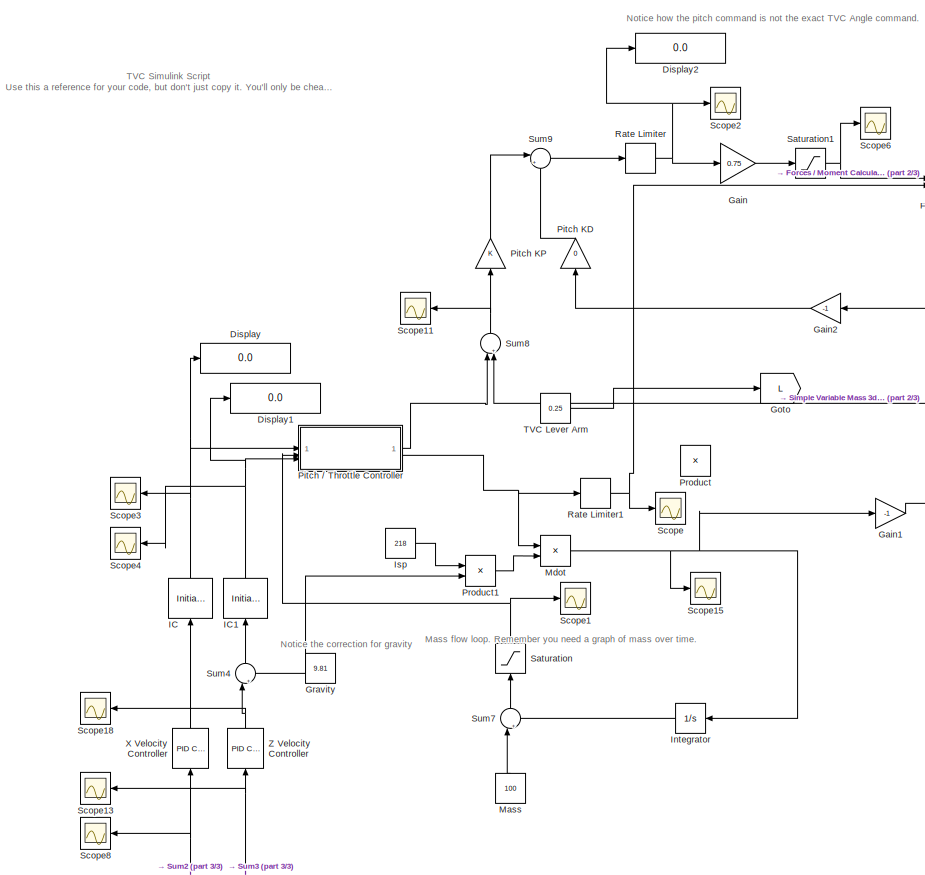
[diagram: root canvas - part 1/3, middle left region]
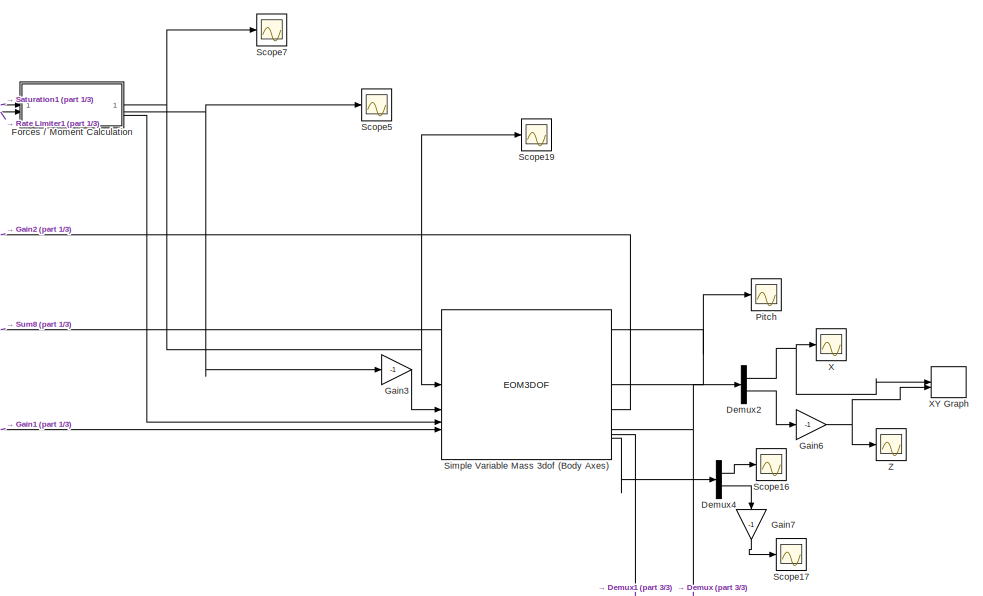
[diagram: root canvas - part 2/3, top right region]
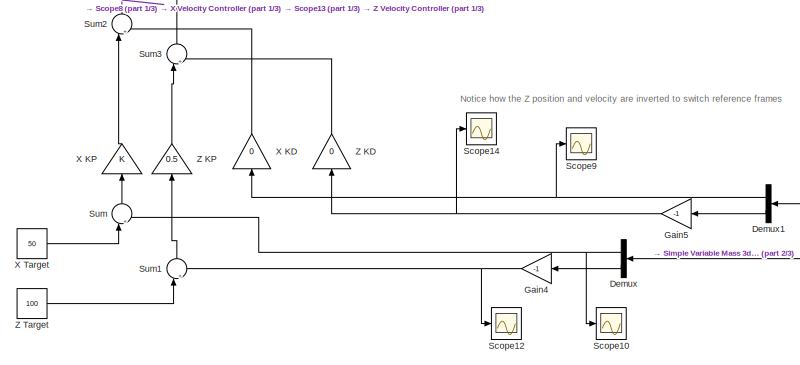
[diagram: root canvas - part 3/3, bottom left region]
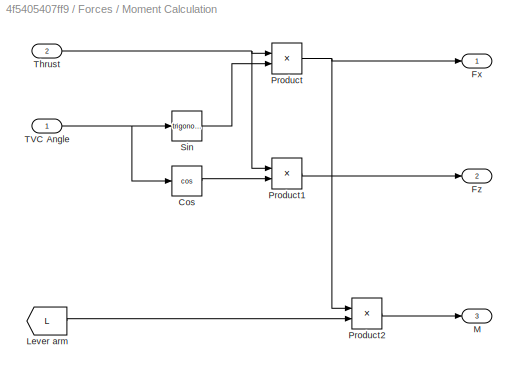
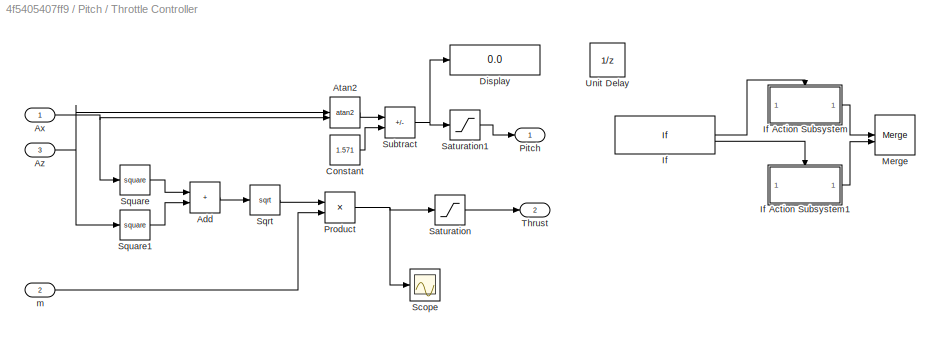
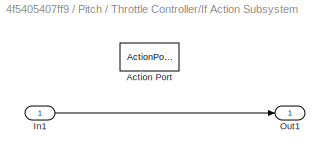
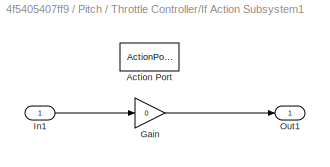
MODEL slx_4f5405407ff9
KIND model
CONFIG AbsTol = auto
CONFIG EnableMultiTasking = off
CONFIG FixedStep = auto
CONFIG MaxStep = auto
CONFIG MinStep = auto
CONFIG RelTol = 1e-3
CONFIG SampleTimeConstraint = Unconstrained
CONFIG SolverName = VariableStepAuto
CONFIG StartTime = 0.0
CONFIG StopTime = 5
BLOCK [Demux] Demux
  NameLocation = top
  Outputs = 2
BLOCK [Demux] Demux1
  NameLocation = top
  Outputs = 2
BLOCK [Demux] Demux2
  Outputs = 2
BLOCK [Demux] Demux4
  Outputs = 2
BLOCK [Display] Display
  Decimation = 1
BLOCK [Display] Display1
  Decimation = 1
BLOCK [Display] Display2
  Decimation = 1
BLOCK [SubSystem] Forces // Moment Calculation
BLOCK [Trigonometry] Forces // Moment Calculation/Cos
  Operator = cos
BLOCK [Outport] Forces // Moment Calculation/Fx
BLOCK [Outport] Forces // Moment Calculation/Fz
  Port = 2
BLOCK [From] Forces // Moment Calculation/Lever arm
  GotoTag = L
  TagVisibility = global
BLOCK [Outport] Forces // Moment Calculation/M
  Port = 3
BLOCK [Product] Forces // Moment Calculation/Product
BLOCK [Product] Forces // Moment Calculation/Product1
BLOCK [Product] Forces // Moment Calculation/Product2
BLOCK [Trigonometry] Forces // Moment Calculation/Sin
BLOCK [Inport] Forces // Moment Calculation/TVC Angle
BLOCK [Inport] Forces // Moment Calculation/Thrust
  Port = 2
BLOCK [Gain] Gain
  Gain = 0.75
BLOCK [Gain] Gain1
  Gain = -1
BLOCK [Gain] Gain2
  Gain = -1
  NameLocation = top
BLOCK [Gain] Gain3
  Gain = -1
BLOCK [Gain] Gain4
  Gain = -1
BLOCK [Gain] Gain5
  Gain = -1
BLOCK [Gain] Gain6
  Gain = -1
BLOCK [Gain] Gain7
  Gain = -1
  NameLocation = left
BLOCK [Goto] Goto
  GotoTag = L
  TagVisibility = global
BLOCK [Constant] Gravity
  NameLocation = top
  SampleTime = -1
  Value = 9.81
BLOCK [InitialCondition] IC
  NameLocation = right
BLOCK [InitialCondition] IC1
  NameLocation = right
BLOCK [Integrator] Integrator
  NameLocation = top
BLOCK [Constant] Isp
  SampleTime = -1
  Value = 218
BLOCK [Constant] Mass
  NameLocation = right
  SampleTime = -1
  Value = 100
BLOCK [Product] Mdot
  Inputs = */
BLOCK [Scope] Pitch
  ActiveDisplayYMaximum = 0.0911743434930714
  ActiveDisplayYMinimum = -0.82056909143764267
  DataLoggingVariableName = ScopeData5
  Floating = off
  GraphicalSettings = {"Style":{"BackgroundColor":[0.12941176470588237,0.12941176470588237,0.12941176470588237],"AxesColor":[0.07058823529411765,0.07058823529411765,0.07058823529411765],"LabelsColor":[0.8509803921568627,0.8509803921568627,0.8509803921568627],"PreserveColors":false,"Visible":[true],"LineStyle":["-"],"LineWidth":[1.5],"BarWidth":[0.9],"LineColor":["auto"],"LineFaceAlpha":[1],"LineEdgeAlpha":[1],"Marker":...<+2061ch>
  MultipleDisplayCache = [{"MaxYLimMag":0.82056909143764267,"MaxYLimReal":0.0911743434930714,"MinYLimMag":0,"MinYLimReal":-0.82056909143764267,"PlotAsMagnitudePhase":false,"ShowGrid":true,"ShowLegend":false,"Title":"%<SignalLabel>","YLabel":""}]
  NumInputPorts = 1
  ScopeFrameLocation = window
  WasSavedAsWebScope = on
  WindowPosition = [573.000000,323.000000,560.000000,420.000000,]
BLOCK [SubSystem] Pitch // Throttle Controller
BLOCK [Sum] Pitch // Throttle Controller/Add
  IconShape = rectangular
BLOCK [Trigonometry] Pitch // Throttle Controller/Atan2
  Operator = atan2
BLOCK [Inport] Pitch // Throttle Controller/Ax
BLOCK [Inport] Pitch // Throttle Controller/Az
  Port = 3
BLOCK [Constant] Pitch // Throttle Controller/Constant
  Value = 1.571
BLOCK [Display] Pitch // Throttle Controller/Display
  Decimation = 1
BLOCK [If] Pitch // Throttle Controller/If
  Commented = on
  IfExpression = u1 > 100
BLOCK [SubSystem] Pitch // Throttle Controller/If Action Subsystem
  Commented = on
  TreatAsAtomicUnit = on
BLOCK [ActionPort] Pitch // Throttle Controller/If Action Subsystem/Action Port
  ActionPortLabel = if(u1 > 100)
BLOCK [Inport] Pitch // Throttle Controller/If Action Subsystem/In1
BLOCK [Outport] Pitch // Throttle Controller/If Action Subsystem/Out1
BLOCK [SubSystem] Pitch // Throttle Controller/If Action Subsystem1
  Commented = on
  TreatAsAtomicUnit = on
BLOCK [ActionPort] Pitch // Throttle Controller/If Action Subsystem1/Action Port
  ActionPortLabel = else
BLOCK [Gain] Pitch // Throttle Controller/If Action Subsystem1/Gain
  Gain = 0
BLOCK [Inport] Pitch // Throttle Controller/If Action Subsystem1/In1
BLOCK [Outport] Pitch // Throttle Controller/If Action Subsystem1/Out1
BLOCK [Merge] Pitch // Throttle Controller/Merge
  Commented = on
BLOCK [Outport] Pitch // Throttle Controller/Pitch
BLOCK [Product] Pitch // Throttle Controller/Product
BLOCK [Saturate] Pitch // Throttle Controller/Saturation
  LowerLimit = 890
  UpperLimit = 2400
BLOCK [Saturate] Pitch // Throttle Controller/Saturation1
  LowerLimit = -3.14
  UpperLimit = 3.14
BLOCK [Scope] Pitch // Throttle Controller/Scope
  ActiveDisplayYMaximum = 10016.396600886135
  ActiveDisplayYMinimum = 3816.6696850978651
  DataLoggingVariableName = ScopeData11
  Floating = off
  GraphicalSettings = {"AxesScalingProperties":{"AlignXAxis":"Center","AlignYAxis":"Center","AutoScaleXAxisLimits":false,"AxesScaling":"Manual","AxesScalingNumUpdates":10,"ExpandOnly":true,"ScaleAxesLimitsAtStop":false,"XAxisDataRange":100,"YAxisDataRange":80},"DisplayProperties":{"ColorOrder":["auto","auto","auto","auto","auto","auto","auto","auto","auto","auto","auto","auto","auto","auto","auto","auto","auto","auto",...<+1910ch>
  MultipleDisplayCache = [{"MaxYLimMag":51951.3230124451,"MaxYLimReal":10016.396600886135,"MinYLimMag":0,"MinYLimReal":3816.6696850978651,"PlotAsMagnitudePhase":false,"ShowGrid":true,"ShowLegend":false,"Title":"%<SignalLabel>","YLabel":""}]
  NumInputPorts = 1
  ScopeFrameLocation = window
  WasSavedAsWebScope = on
  WindowPosition = [573.000000,323.000000,560.000000,420.000000,]
BLOCK [Sqrt] Pitch // Throttle Controller/Sqrt
BLOCK [Math] Pitch // Throttle Controller/Square
  Operator = square
BLOCK [Math] Pitch // Throttle Controller/Square1
  Operator = square
BLOCK [Sum] Pitch // Throttle Controller/Subtract
  IconShape = rectangular
  Inputs = +-
BLOCK [Outport] Pitch // Throttle Controller/Thrust
  Port = 2
BLOCK [UnitDelay] Pitch // Throttle Controller/Unit Delay
  Commented = on
  HasFrameUpgradeWarning = on
  SampleTime = -1
BLOCK [Inport] Pitch // Throttle Controller/m
  Port = 2
BLOCK [Gain] Pitch KD
  Gain = 0
  NameLocation = right
BLOCK [Gain] Pitch KP
  NameLocation = right
BLOCK [Product] Product
  Commented = on
BLOCK [Product] Product1
BLOCK [RateLimiter] Rate Limiter
  FallingSlewLimit = -inf
  RisingSlewLimit = 10
  SampleTimeMode = inherited
BLOCK [RateLimiter] Rate Limiter1
  FallingSlewLimit = -50
  RisingSlewLimit = 50
  SampleTimeMode = inherited
BLOCK [Saturate] Saturation
  LowerLimit = 50
  NameLocation = right
  UpperLimit = 200
BLOCK [Saturate] Saturation1
BLOCK [Scope] Scope
  ActiveDisplayYMaximum = 2422.8434633727511
  ActiveDisplayYMinimum = 2194.4088296452419
  DataLoggingVariableName = ScopeData2
  Floating = off
  GraphicalSettings = {"Style":{"BackgroundColor":[0.12941176470588237,0.12941176470588237,0.12941176470588237],"AxesColor":[0.07058823529411765,0.07058823529411765,0.07058823529411765],"LabelsColor":[0.8509803921568627,0.8509803921568627,0.8509803921568627],"PreserveColors":false,"Visible":[true],"LineStyle":["-"],"LineWidth":[1.5],"BarWidth":[0.9],"LineColor":["auto"],"LineFaceAlpha":[1],"LineEdgeAlpha":[1],"Marker":...<+2035ch>
  MultipleDisplayCache = [{"MaxYLimMag":2422.8434633727511,"MaxYLimReal":2422.8434633727511,"MinYLimMag":2194.4088296452419,"MinYLimReal":2194.4088296452419,"PlotAsMagnitudePhase":false,"ShowGrid":true,"ShowLegend":false,"Title":"%<SignalLabel>","YLabel":""}]
  NumInputPorts = 1
  ScopeFrameLocation = window
  WasSavedAsWebScope = on
  WindowPosition = [573.000000,323.000000,560.000000,420.000000,]
BLOCK [Scope] Scope1
  ActiveDisplayYMaximum = 101.23453809256529
  ActiveDisplayYMinimum = 88.889157166912454
  DataLoggingVariableName = ScopeData3
  Floating = off
  GraphicalSettings = {"Style":{"BackgroundColor":[0.12941176470588237,0.12941176470588237,0.12941176470588237],"AxesColor":[0.07058823529411765,0.07058823529411765,0.07058823529411765],"LabelsColor":[0.8509803921568627,0.8509803921568627,0.8509803921568627],"PreserveColors":false,"Visible":[true],"LineStyle":["-"],"LineWidth":[1.5],"BarWidth":[0.9],"LineColor":["auto"],"LineFaceAlpha":[1],"LineEdgeAlpha":[1],"Marker":...<+2033ch>
  MultipleDisplayCache = [{"MaxYLimMag":101.23453809256529,"MaxYLimReal":101.23453809256529,"MinYLimMag":88.889157166912454,"MinYLimReal":88.889157166912454,"PlotAsMagnitudePhase":false,"ShowGrid":true,"ShowLegend":false,"Title":"%<SignalLabel>","YLabel":""}]
  NumInputPorts = 1
  ScopeFrameLocation = window
  WasSavedAsWebScope = on
  WindowPosition = [573.000000,323.000000,560.000000,420.000000,]
BLOCK [Scope] Scope10
  ActiveDisplayYMaximum = 7.5279463716010717
  ActiveDisplayYMinimum = -20.815065172496663
  DataLoggingVariableName = ScopeData14
  Floating = off
  GraphicalSettings = {"Style":{"BackgroundColor":[0.12941176470588237,0.12941176470588237,0.12941176470588237],"AxesColor":[0.07058823529411765,0.07058823529411765,0.07058823529411765],"LabelsColor":[0.8509803921568627,0.8509803921568627,0.8509803921568627],"PreserveColors":false,"Visible":[true],"LineStyle":["-"],"LineWidth":[1.5],"BarWidth":[0.9],"LineColor":["auto"],"LineFaceAlpha":[1],"LineEdgeAlpha":[1],"Marker":...<+1995ch>  <repeated x3 — deduplicated; at blocks: Scope10, X, Z>
  MultipleDisplayCache = [{"MaxYLimMag":266.82681448737128,"MaxYLimReal":7.5279463716010717,"MinYLimMag":0,"MinYLimReal":-20.815065172496663,"PlotAsMagnitudePhase":false,"ShowGrid":true,"ShowLegend":false,"Title":"%<SignalLabel>","YLabel":""}]
  NumInputPorts = 1
  ScopeFrameLocation = window
  WasSavedAsWebScope = on
  WindowPosition = [573.000000,323.000000,560.000000,420.000000,]
BLOCK [Scope] Scope11
  ActiveDisplayYMaximum = 1.6240869125779045
  ActiveDisplayYMinimum = -0.954432771582435
  DataLoggingVariableName = ScopeData15
  Floating = off
  GraphicalSettings = {"Style":{"BackgroundColor":[0.12941176470588237,0.12941176470588237,0.12941176470588237],"AxesColor":[0.07058823529411765,0.07058823529411765,0.07058823529411765],"LabelsColor":[0.8509803921568627,0.8509803921568627,0.8509803921568627],"PreserveColors":false,"Visible":[true],"LineStyle":["-"],"LineWidth":[1.5],"BarWidth":[0.9],"LineColor":["auto"],"LineFaceAlpha":[1],"LineEdgeAlpha":[1],"Marker":...<+2013ch>
  MultipleDisplayCache = [{"MaxYLimMag":1.6240869125779045,"MaxYLimReal":1.6240869125779045,"MinYLimMag":0,"MinYLimReal":-0.954432771582435,"PlotAsMagnitudePhase":false,"ShowGrid":true,"ShowLegend":false,"Title":"%<SignalLabel>","YLabel":""}]
  NameLocation = top
  NumInputPorts = 1
  ScopeFrameLocation = window
  WasSavedAsWebScope = on
  WindowPosition = [552.000000,319.000000,560.000000,420.000000,]
BLOCK [Scope] Scope12
  ActiveDisplayYMaximum = 89.535378805693725
  ActiveDisplayYMinimum = -805.81840925124368
  DataLoggingVariableName = ScopeData16
  Floating = off
  GraphicalSettings = {"Style":{"BackgroundColor":[0.12941176470588237,0.12941176470588237,0.12941176470588237],"AxesColor":[0.07058823529411765,0.07058823529411765,0.07058823529411765],"LabelsColor":[0.8509803921568627,0.8509803921568627,0.8509803921568627],"PreserveColors":false,"Visible":[true],"LineStyle":["-"],"LineWidth":[1.5],"BarWidth":[0.9],"LineColor":["auto"],"LineFaceAlpha":[1],"LineEdgeAlpha":[1],"Marker":...<+1993ch>
  MultipleDisplayCache = [{"MaxYLimMag":805.81840925124368,"MaxYLimReal":89.535378805693725,"MinYLimMag":0,"MinYLimReal":-805.81840925124368,"PlotAsMagnitudePhase":false,"ShowGrid":true,"ShowLegend":false,"Title":"%<SignalLabel>","YLabel":""}]
  NumInputPorts = 1
  ScopeFrameLocation = window
  WasSavedAsWebScope = on
  WindowPosition = [573.000000,323.000000,560.000000,420.000000,]
BLOCK [Scope] Scope13
  ActiveDisplayYMaximum = 58.397110596446396
  ActiveDisplayYMinimum = -25.57399536801757
  DataLoggingVariableName = ScopeData17
  Floating = off
  GraphicalSettings = {"Style":{"BackgroundColor":[0.12941176470588237,0.12941176470588237,0.12941176470588237],"AxesColor":[0.07058823529411765,0.07058823529411765,0.07058823529411765],"LabelsColor":[0.8509803921568627,0.8509803921568627,0.8509803921568627],"PreserveColors":false,"Visible":[true],"LineStyle":["-"],"LineWidth":[1.5],"BarWidth":[0.9],"LineColor":["auto"],"LineFaceAlpha":[1],"LineEdgeAlpha":[1],"Marker":...<+1991ch>
  MultipleDisplayCache = [{"MaxYLimMag":58.397110596446396,"MaxYLimReal":58.397110596446396,"MinYLimMag":0,"MinYLimReal":-25.57399536801757,"PlotAsMagnitudePhase":false,"ShowGrid":true,"ShowLegend":false,"Title":"%<SignalLabel>","YLabel":""}]
  NameLocation = top
  NumInputPorts = 1
  ScopeFrameLocation = window
  WasSavedAsWebScope = on
  WindowPosition = [864.000000,323.000000,560.000000,420.000000,]
BLOCK [Scope] Scope14
  ActiveDisplayYMaximum = 210.23271517076014
  ActiveDisplayYMinimum = -23.359190574528903
  DataLoggingVariableName = ScopeData18
  Floating = off
  GraphicalSettings = {"Style":{"BackgroundColor":[0.12941176470588237,0.12941176470588237,0.12941176470588237],"AxesColor":[0.07058823529411765,0.07058823529411765,0.07058823529411765],"LabelsColor":[0.8509803921568627,0.8509803921568627,0.8509803921568627],"PreserveColors":false,"Visible":[true],"LineStyle":["-"],"LineWidth":[1.5],"BarWidth":[0.9],"LineColor":["auto"],"LineFaceAlpha":[1],"LineEdgeAlpha":[1],"Marker":...<+2001ch>
  MultipleDisplayCache = [{"MaxYLimMag":210.23271517076014,"MaxYLimReal":210.23271517076014,"MinYLimMag":0,"MinYLimReal":-23.359190574528903,"PlotAsMagnitudePhase":false,"ShowGrid":true,"ShowLegend":false,"Title":"%<SignalLabel>","YLabel":""}]
  NumInputPorts = 1
  ScopeFrameLocation = window
  WasSavedAsWebScope = on
  WindowPosition = [573.000000,323.000000,560.000000,420.000000,]
BLOCK [Scope] Scope15
  ActiveDisplayYMaximum = 1
  ActiveDisplayYMinimum = -1
  DataLoggingVariableName = ScopeData19
  Floating = off
  GraphicalSettings = {"Style":{"BackgroundColor":[0.12941176470588237,0.12941176470588237,0.12941176470588237],"AxesColor":[0.07058823529411765,0.07058823529411765,0.07058823529411765],"LabelsColor":[0.8509803921568627,0.8509803921568627,0.8509803921568627],"PreserveColors":false,"Visible":[true],"LineStyle":["-"],"LineWidth":[1.5],"BarWidth":[0.9],"LineColor":["auto"],"LineFaceAlpha":[1],"LineEdgeAlpha":[1],"Marker":...<+1890ch>
  MultipleDisplayCache = [{"MaxYLimMag":1,"MaxYLimReal":1,"MinYLimMag":0,"MinYLimReal":-1,"PlotAsMagnitudePhase":false,"ShowGrid":true,"ShowLegend":false,"Title":"%<SignalLabel>","YLabel":""}]
  NumInputPorts = 1
  ScopeFrameLocation = window
  WasSavedAsWebScope = on
  WindowPosition = [573.000000,323.000000,560.000000,420.000000,]
BLOCK [Scope] Scope16
  DataLoggingVariableName = ScopeData20
  Floating = off
  GraphicalSettings = {"GraphicalSettings":{"LegacySettings":true,"Style":{"Style":{"PlotType":"Auto"}}}}
  NumInputPorts = 1
  WasSavedAsWebScope = on
BLOCK [Scope] Scope17
  DataLoggingVariableName = ScopeData21
  Floating = off
  GraphicalSettings = {"GraphicalSettings":{"LegacySettings":true,"Style":{"Style":{"PlotType":"Auto"}}}}
  NumInputPorts = 1
  WasSavedAsWebScope = on
BLOCK [Scope] Scope18
  ActiveDisplayYMaximum = 56.25
  ActiveDisplayYMinimum = -6.2499999999999982
  DataLoggingVariableName = ScopeData22
  Floating = off
  GraphicalSettings = {"Style":{"BackgroundColor":[0.12941176470588237,0.12941176470588237,0.12941176470588237],"AxesColor":[0.07058823529411765,0.07058823529411765,0.07058823529411765],"LabelsColor":[0.8509803921568627,0.8509803921568627,0.8509803921568627],"PreserveColors":false,"Visible":[true],"LineStyle":["-"],"LineWidth":[1.5],"BarWidth":[0.9],"LineColor":["auto"],"LineFaceAlpha":[1],"LineEdgeAlpha":[1],"Marker":...<+2055ch>
  MultipleDisplayCache = [{"MaxYLimMag":56.25,"MaxYLimReal":56.25,"MinYLimMag":0,"MinYLimReal":-6.2499999999999982,"PlotAsMagnitudePhase":false,"ShowGrid":true,"ShowLegend":false,"Title":"%<SignalLabel>","YLabel":""}]
  NameLocation = top
  NumInputPorts = 1
  ScopeFrameLocation = window
  WasSavedAsWebScope = on
  WindowPosition = [864.000000,323.000000,560.000000,420.000000,]
BLOCK [Scope] Scope19
  ActiveDisplayYMaximum = 1
  ActiveDisplayYMinimum = -1
  DataLoggingVariableName = ScopeData23
  Floating = off
  GraphicalSettings = {"Style":{"BackgroundColor":[0.12941176470588237,0.12941176470588237,0.12941176470588237],"AxesColor":[0.07058823529411765,0.07058823529411765,0.07058823529411765],"LabelsColor":[0.8509803921568627,0.8509803921568627,0.8509803921568627],"PreserveColors":false,"Visible":[true],"LineStyle":["-"],"LineWidth":[1.5],"BarWidth":[0.9],"LineColor":["auto"],"LineFaceAlpha":[1],"LineEdgeAlpha":[1],"Marker":...<+1890ch>
  MultipleDisplayCache = [{"MaxYLimMag":1,"MaxYLimReal":1,"MinYLimMag":0,"MinYLimReal":-1,"PlotAsMagnitudePhase":false,"ShowGrid":true,"ShowLegend":false,"Title":"%<SignalLabel>","YLabel":""}]
  NumInputPorts = 1
  ScopeFrameLocation = window
  WasSavedAsWebScope = on
  WindowPosition = [573.000000,323.000000,560.000000,419.000000,]
BLOCK [Scope] Scope2
  ActiveDisplayYMaximum = 2.4582465684153676
  ActiveDisplayYMinimum = -1.2384537813656917
  DataLoggingVariableName = ScopeData4
  Floating = off
  GraphicalSettings = {"Style":{"BackgroundColor":[0.12941176470588237,0.12941176470588237,0.12941176470588237],"AxesColor":[0.07058823529411765,0.07058823529411765,0.07058823529411765],"LabelsColor":[0.8509803921568627,0.8509803921568627,0.8509803921568627],"PreserveColors":false,"Visible":[true],"LineStyle":["-"],"LineWidth":[1.5],"BarWidth":[0.9],"LineColor":["auto"],"LineFaceAlpha":[1],"LineEdgeAlpha":[1],"Marker":...<+2009ch>
  MultipleDisplayCache = [{"MaxYLimMag":2.4582465684153676,"MaxYLimReal":2.4582465684153676,"MinYLimMag":0,"MinYLimReal":-1.2384537813656917,"PlotAsMagnitudePhase":false,"ShowGrid":true,"ShowLegend":false,"Title":"%<SignalLabel>","YLabel":""}]
  NumInputPorts = 1
  ScopeFrameLocation = window
  WasSavedAsWebScope = on
  WindowPosition = [573.000000,323.000000,560.000000,420.000000,]
BLOCK [Scope] Scope3
  ActiveDisplayYMaximum = 14.853806601140857
  ActiveDisplayYMinimum = -12.780889310603875
  DataLoggingVariableName = ScopeData6
  Floating = off
  GraphicalSettings = {"Style":{"BackgroundColor":[0.12941176470588237,0.12941176470588237,0.12941176470588237],"AxesColor":[0.07058823529411765,0.07058823529411765,0.07058823529411765],"LabelsColor":[0.8509803921568627,0.8509803921568627,0.8509803921568627],"PreserveColors":false,"Visible":[true],"LineStyle":["-"],"LineWidth":[1.5],"BarWidth":[0.9],"LineColor":["auto"],"LineFaceAlpha":[1],"LineEdgeAlpha":[1],"Marker":...<+2005ch>
  MultipleDisplayCache = [{"MaxYLimMag":14.853806601140857,"MaxYLimReal":14.853806601140857,"MinYLimMag":0,"MinYLimReal":-12.780889310603875,"PlotAsMagnitudePhase":false,"ShowGrid":true,"ShowLegend":false,"Title":"%<SignalLabel>","YLabel":""}]
  NameLocation = top
  NumInputPorts = 1
  ScopeFrameLocation = window
  WasSavedAsWebScope = on
  WindowPosition = [573.000000,323.000000,560.000000,420.000000,]
BLOCK [Scope] Scope4
  ActiveDisplayYMaximum = 9.9143404242177677
  ActiveDisplayYMinimum = 7.4428510639758034
  DataLoggingVariableName = ScopeData7
  Floating = off
  GraphicalSettings = {"Style":{"BackgroundColor":[0.12941176470588237,0.12941176470588237,0.12941176470588237],"AxesColor":[0.07058823529411765,0.07058823529411765,0.07058823529411765],"LabelsColor":[0.8509803921568627,0.8509803921568627,0.8509803921568627],"PreserveColors":false,"Visible":[true],"LineStyle":["-"],"LineWidth":[1.5],"BarWidth":[0.9],"LineColor":["auto"],"LineFaceAlpha":[1],"LineEdgeAlpha":[1],"Marker":...<+1937ch>
  MultipleDisplayCache = [{"MaxYLimMag":9.9143404242177677,"MaxYLimReal":9.9143404242177677,"MinYLimMag":7.4428510639758034,"MinYLimReal":7.4428510639758034,"PlotAsMagnitudePhase":false,"ShowGrid":true,"ShowLegend":false,"Title":"%<SignalLabel>","YLabel":""}]
  NameLocation = top
  NumInputPorts = 1
  ScopeFrameLocation = window
  WasSavedAsWebScope = on
  WindowPosition = [573.000000,323.000000,560.000000,420.000000,]
BLOCK [Scope] Scope5
  ActiveDisplayYMaximum = 1029.5314461063213
  ActiveDisplayYMinimum = 226.8801933940461
  DataLoggingVariableName = ScopeData8
  Floating = off
  GraphicalSettings = {"Style":{"BackgroundColor":[0.12941176470588237,0.12941176470588237,0.12941176470588237],"AxesColor":[0.07058823529411765,0.07058823529411765,0.07058823529411765],"LabelsColor":[0.8509803921568627,0.8509803921568627,0.8509803921568627],"PreserveColors":false,"Visible":[true],"LineStyle":["-"],"LineWidth":[1.5],"BarWidth":[0.9],"LineColor":["auto"],"LineFaceAlpha":[1],"LineEdgeAlpha":[1],"Marker":...<+2071ch>
  MultipleDisplayCache = [{"MaxYLimMag":1029.5314461063213,"MaxYLimReal":1029.5314461063213,"MinYLimMag":226.8801933940461,"MinYLimReal":226.8801933940461,"PlotAsMagnitudePhase":false,"ShowGrid":true,"ShowLegend":false,"Title":"%<SignalLabel>","YLabel":""}]
  NumInputPorts = 1
  ScopeFrameLocation = window
  WasSavedAsWebScope = on
  WindowPosition = [573.000000,323.000000,560.000000,420.000000,]
BLOCK [Scope] Scope6
  ActiveDisplayYMaximum = 0.625
  ActiveDisplayYMinimum = -0.625
  DataLoggingVariableName = ScopeData9
  Floating = off
  GraphicalSettings = {"Style":{"BackgroundColor":[0.12941176470588237,0.12941176470588237,0.12941176470588237],"AxesColor":[0.07058823529411765,0.07058823529411765,0.07058823529411765],"LabelsColor":[0.8509803921568627,0.8509803921568627,0.8509803921568627],"PreserveColors":false,"Visible":[true],"LineStyle":["-"],"LineWidth":[1.5],"BarWidth":[0.9],"LineColor":["auto"],"LineFaceAlpha":[1],"LineEdgeAlpha":[1],"Marker":...<+1929ch>
  MultipleDisplayCache = [{"MaxYLimMag":0.625,"MaxYLimReal":0.625,"MinYLimMag":0,"MinYLimReal":-0.625,"PlotAsMagnitudePhase":false,"ShowGrid":true,"ShowLegend":false,"Title":"%<SignalLabel>","YLabel":""}]
  NumInputPorts = 1
  ScopeFrameLocation = window
  WasSavedAsWebScope = on
  WindowPosition = [573.000000,323.000000,560.000000,420.000000,]
BLOCK [Scope] Scope7
  ActiveDisplayYMaximum = 1159.0366668378447
  ActiveDisplayYMinimum = -1056.9166821822043
  DataLoggingVariableName = ScopeData10
  Floating = off
  GraphicalSettings = {"Style":{"BackgroundColor":[0.12941176470588237,0.12941176470588237,0.12941176470588237],"AxesColor":[0.07058823529411765,0.07058823529411765,0.07058823529411765],"LabelsColor":[0.8509803921568627,0.8509803921568627,0.8509803921568627],"PreserveColors":false,"Visible":[true],"LineStyle":["-"],"LineWidth":[1.5],"BarWidth":[0.9],"LineColor":["auto"],"LineFaceAlpha":[1],"LineEdgeAlpha":[1],"Marker":...<+2043ch>
  MultipleDisplayCache = [{"MaxYLimMag":1159.0366668378447,"MaxYLimReal":1159.0366668378447,"MinYLimMag":0,"MinYLimReal":-1056.9166821822043,"PlotAsMagnitudePhase":false,"ShowGrid":true,"ShowLegend":false,"Title":"%<SignalLabel>","YLabel":""}]
  NumInputPorts = 1
  ScopeFrameLocation = window
  WasSavedAsWebScope = on
  WindowPosition = [573.000000,323.000000,560.000000,420.000000,]
BLOCK [Scope] Scope8
  ActiveDisplayYMaximum = 67.8668801672756
  ActiveDisplayYMinimum = -47.347015641611677
  DataLoggingVariableName = ScopeData12
  Floating = off
  GraphicalSettings = {"Style":{"BackgroundColor":[0.12941176470588237,0.12941176470588237,0.12941176470588237],"AxesColor":[0.07058823529411765,0.07058823529411765,0.07058823529411765],"LabelsColor":[0.8509803921568627,0.8509803921568627,0.8509803921568627],"PreserveColors":false,"Visible":[true],"LineStyle":["-"],"LineWidth":[1.5],"BarWidth":[0.9],"LineColor":["auto"],"LineFaceAlpha":[1],"LineEdgeAlpha":[1],"Marker":...<+1983ch>
  MultipleDisplayCache = [{"MaxYLimMag":67.8668801672756,"MaxYLimReal":67.8668801672756,"MinYLimMag":0,"MinYLimReal":-47.347015641611677,"PlotAsMagnitudePhase":false,"ShowGrid":true,"ShowLegend":false,"Title":"%<SignalLabel>","YLabel":""}]
  NameLocation = top
  NumInputPorts = 1
  ScopeFrameLocation = window
  WasSavedAsWebScope = on
  WindowPosition = [864.000000,323.000000,560.000000,420.000000,]
BLOCK [Scope] Scope9
  ActiveDisplayYMaximum = 1
  ActiveDisplayYMinimum = -1
  DataLoggingVariableName = ScopeData13
  Floating = off
  GraphicalSettings = {"Style":{"BackgroundColor":[0.12941176470588237,0.12941176470588237,0.12941176470588237],"AxesColor":[0.07058823529411765,0.07058823529411765,0.07058823529411765],"LabelsColor":[0.8509803921568627,0.8509803921568627,0.8509803921568627],"PreserveColors":false,"Visible":[true],"LineStyle":["-"],"LineWidth":[1.5],"BarWidth":[0.9],"LineColor":["auto"],"LineFaceAlpha":[1],"LineEdgeAlpha":[1],"Marker":...<+1898ch>
  MultipleDisplayCache = [{"MaxYLimMag":1,"MaxYLimReal":1,"MinYLimMag":0,"MinYLimReal":-1,"PlotAsMagnitudePhase":false,"ShowGrid":true,"ShowLegend":false,"Title":"%<SignalLabel>","YLabel":""}]
  NumInputPorts = 1
  ScopeFrameLocation = window
  WasSavedAsWebScope = on
  WindowPosition = [727.000000,238.000000,560.000000,420.000000,]
BLOCK [EOM3DOF] Simple Variable Mass 3dof (Body Axes)
  Iyy = 5000
  Iyy_e = 250
  Iyy_f = 500
  mass = 100
  mass_e = 50
  mass_f = 100
  mtype = Simple Variable
  v_ini = 0
BLOCK [Sum] Sum
  Inputs = |+-
  NameLocation = right
BLOCK [Sum] Sum1
  Inputs = |+-
  NameLocation = right
BLOCK [Sum] Sum2
  Inputs = |+-
  NameLocation = right
BLOCK [Sum] Sum3
  Inputs = |+-
  NameLocation = right
BLOCK [Sum] Sum4
  Inputs = |++
  NameLocation = right
BLOCK [Sum] Sum7
  Inputs = |+-
  NameLocation = right
BLOCK [Sum] Sum8
  Inputs = |+-
  NameLocation = right
BLOCK [Sum] Sum9
  Inputs = |++
BLOCK [Constant] TVC Lever Arm
  SampleTime = -1
  Value = 0.25
BLOCK [Scope] X
  ActiveDisplayYMaximum = 82.651598755514257
  ActiveDisplayYMinimum = -13.552881611444921
  Floating = off
  MultipleDisplayCache = [{"MaxYLimMag":82.651598755514257,"MaxYLimReal":82.651598755514257,"MinYLimMag":0,"MinYLimReal":-13.552881611444921,"PlotAsMagnitudePhase":false,"ShowGrid":true,"ShowLegend":false,"Title":"%<SignalLabel>","YLabel":""}]
  NumInputPorts = 1
  ScopeFrameLocation = window
  WasSavedAsWebScope = on
  WindowPosition = [573.000000,323.000000,560.000000,420.000000,]
BLOCK [Gain] X KD
  Gain = 0
  NameLocation = right
BLOCK [Gain] X KP
  NameLocation = left
BLOCK [Constant] X Target
  SampleTime = -1
  Value = 50
BLOCK [Reference] X Velocity Controller  REF=slpidlib/PID Controller
  LibrarySourceBlock = simulink/Continuous/PID Controller
  NameLocation = left
  SourceBlock = slpidlib/PID Controller
  SourceType = PID 1dof
BLOCK [Record] XY Graph
  CompatibilityTag = XY
  FileSettingsInternal = {"entries":[{"content":{"excelSettings":{"content":{},"type":"Streamout.ExcelSettings"},"parquetSettings":{"content":{},"type":"Streamout.ParquetSettings"}},"type":"Streamout.FileSettingStorage","uuid":""}],"packageUris":["http:\/\/schema.mathworks.com\/mf0\/streamout_blocks\/R2020a"],"version":"1.0"}
  FrameSettings = [0, 0]
  Layout = [1 1]
  NumPorts = 2.0
  SignalsInternal = {"entries":[{"content":{"signals":[{"content":{"blockPath":[],"dimensions":[1],"domain":"","lineColor":"#a2142f","plots":[ 1 ],"port":1,"signalID":1,"signalName":"Demux2:1"},"type":"RecordBlkView.Signal","uuid":""},{"content":{"blockPath":[],"dimensions":[1],"domain":"","lineColor":"#139fff","plots":[ 1 ],"port":2,"signalID":2,"signalName":"Gain6"},"type":"RecordBlkView.Signal","uuid":""}]},"type"...<+137ch>
  VisualizationBindings = {"xyplotplugin":{"info":[{"series":[{"bindingParametersList":[{"parameter":"X-Axis","signalID":1,"signalName":"Demux2:1"},{"parameter":"Y-Axis","signalID":2,"signalName":"Gain6"}],"seriesID":0}],"subplotID":1}]}}
BLOCK [Scope] Z
  ActiveDisplayYMaximum = 133.30722453468408
  ActiveDisplayYMinimum = -21.863787743348553
  DataLoggingVariableName = ScopeData1
  Floating = off
  MultipleDisplayCache = [{"MaxYLimMag":114.89361823538907,"MaxYLimReal":133.30722453468408,"MinYLimMag":0,"MinYLimReal":-21.863787743348553,"PlotAsMagnitudePhase":false,"ShowGrid":true,"ShowLegend":false,"Title":"%<SignalLabel>","YLabel":""}]
  NumInputPorts = 1
  ScopeFrameLocation = window
  WasSavedAsWebScope = on
  WindowPosition = [573.000000,323.000000,560.000000,420.000000,]
BLOCK [Gain] Z KD
  Gain = 0
  NameLocation = right
BLOCK [Gain] Z KP
  Gain = 0.5
  NameLocation = right
BLOCK [Constant] Z Target
  SampleTime = -1
  Value = 100
BLOCK [Reference] Z Velocity Controller  REF=slpidlib/PID Controller
  LibrarySourceBlock = simulink/Continuous/PID Controller
  NameLocation = right
  SourceBlock = slpidlib/PID Controller
  SourceType = PID 1dof
ANNOTATION (root): Mass flow loop. Remember you need a graph of mass over time.
ANNOTATION (root): Notice how the Z position and velocity are inverted to switch reference frames
ANNOTATION (root): Notice how the pitch command is not the exact TVC Angle command.
ANNOTATION (root): Notice the correction for gravity
ANNOTATION (root): TVC Simulink Script Use this a reference for your code, but don't just copy it. You'll only be cheating yourself. Notice how this script doesn't only use Simulink's in built PID controller, but also corrects using the position, velocity and acceleration directly.
NET Demux1:1 -> Scope9:1, X KD:1
LINE Demux1:2 -> Gain5:1
NET Demux2:1 -> X:1, XY Graph:1
LINE Demux2:2 -> Gain6:1
LINE Demux4:1 -> Scope16:1
LINE Demux4:2 -> Gain7:1
NET Demux:1 -> Scope10:1, Sum:2
LINE Demux:2 -> Gain4:1
LINE Forces // Moment Calculation/Cos:1 -> Forces // Moment Calculation/Product1:2
LINE Forces // Moment Calculation/Lever arm:1 -> Forces // Moment Calculation/Product2:2
LINE Forces // Moment Calculation/Product1:1 -> Forces // Moment Calculation/Fz:1
LINE Forces // Moment Calculation/Product2:1 -> Forces // Moment Calculation/M:1
NET Forces // Moment Calculation/Product:1 -> Forces // Moment Calculation/Fx:1, Forces // Moment Calculation/Product2:1
LINE Forces // Moment Calculation/Sin:1 -> Forces // Moment Calculation/Product:2
NET Forces // Moment Calculation/TVC Angle:1 -> Forces // Moment Calculation/Cos:1, Forces // Moment Calculation/Sin:1
NET Forces // Moment Calculation/Thrust:1 -> Forces // Moment Calculation/Product1:1, Forces // Moment Calculation/Product:1
NET Forces // Moment Calculation:1 -> Scope19:1, Scope7:1, Simple Variable Mass 3dof (Body Axes):1
NET Forces // Moment Calculation:2 -> Gain3:1, Scope5:1
LINE Forces // Moment Calculation:3 -> Simple Variable Mass 3dof (Body Axes):3
LINE Gain1:1 -> Simple Variable Mass 3dof (Body Axes):4
LINE Gain2:1 -> Pitch KD:1
LINE Gain3:1 -> Simple Variable Mass 3dof (Body Axes):2
NET Gain4:1 -> Scope12:1, Sum1:2
NET Gain5:1 -> Scope14:1, Z KD:1
NET Gain6:1 -> XY Graph:2, Z:1
LINE Gain7:1 -> Scope17:1
LINE Gain:1 -> Saturation1:1
NET Gravity:1 -> Product1:2, Sum4:2
NET IC1:1 -> Display1:1, Pitch // Throttle Controller:3, Scope4:1
NET IC:1 -> Display:1, Pitch // Throttle Controller:1, Scope3:1
LINE Integrator:1 -> Sum7:2
LINE Isp:1 -> Product1:1
LINE Mass:1 -> Sum7:1
NET Mdot:1 -> Gain1:1, Integrator:1, Scope15:1
LINE Pitch // Throttle Controller/Add:1 -> Pitch // Throttle Controller/Sqrt:1
LINE Pitch // Throttle Controller/Atan2:1 -> Pitch // Throttle Controller/Subtract:1
NET Pitch // Throttle Controller/Ax:1 -> Pitch // Throttle Controller/Atan2:2, Pitch // Throttle Controller/Square:1
NET Pitch // Throttle Controller/Az:1 -> Pitch // Throttle Controller/Atan2:1, Pitch // Throttle Controller/Square1:1
LINE Pitch // Throttle Controller/Constant:1 -> Pitch // Throttle Controller/Subtract:2
LINE Pitch // Throttle Controller/If Action Subsystem/In1:1 -> Pitch // Throttle Controller/If Action Subsystem/Out1:1
LINE Pitch // Throttle Controller/If Action Subsystem1/Gain:1 -> Pitch // Throttle Controller/If Action Subsystem1/Out1:1
LINE Pitch // Throttle Controller/If Action Subsystem1/In1:1 -> Pitch // Throttle Controller/If Action Subsystem1/Gain:1
LINE Pitch // Throttle Controller/If Action Subsystem1:1 -> Pitch // Throttle Controller/Merge:2
LINE Pitch // Throttle Controller/If Action Subsystem:1 -> Pitch // Throttle Controller/Merge:1
LINE Pitch // Throttle Controller/If:1 -> Pitch // Throttle Controller/If Action Subsystem:ifaction
LINE Pitch // Throttle Controller/If:2 -> Pitch // Throttle Controller/If Action Subsystem1:ifaction
NET Pitch // Throttle Controller/Product:1 -> Pitch // Throttle Controller/Saturation:1, Pitch // Throttle Controller/Scope:1
LINE Pitch // Throttle Controller/Saturation1:1 -> Pitch // Throttle Controller/Pitch:1
LINE Pitch // Throttle Controller/Saturation:1 -> Pitch // Throttle Controller/Thrust:1
LINE Pitch // Throttle Controller/Sqrt:1 -> Pitch // Throttle Controller/Product:1
LINE Pitch // Throttle Controller/Square1:1 -> Pitch // Throttle Controller/Add:2
LINE Pitch // Throttle Controller/Square:1 -> Pitch // Throttle Controller/Add:1
NET Pitch // Throttle Controller/Subtract:1 -> Pitch // Throttle Controller/Display:1, Pitch // Throttle Controller/Saturation1:1
LINE Pitch // Throttle Controller/m:1 -> Pitch // Throttle Controller/Product:2
LINE Pitch // Throttle Controller:1 -> Sum8:1
NET Pitch // Throttle Controller:2 -> Mdot:1, Rate Limiter1:1
LINE Pitch KD:1 -> Sum9:2
LINE Pitch KP:1 -> Sum9:1
LINE Product1:1 -> Mdot:2
NET Rate Limiter1:1 -> Forces // Moment Calculation:2, Scope:1
NET Rate Limiter:1 -> Display2:1, Gain:1, Scope2:1
NET Saturation1:1 -> Forces // Moment Calculation:1, Scope6:1
NET Saturation:1 -> Pitch // Throttle Controller:2, Scope1:1
NET Simple Variable Mass 3dof (Body Axes):1 -> Pitch:1, Sum8:2
LINE Simple Variable Mass 3dof (Body Axes):2 -> Gain2:1
NET Simple Variable Mass 3dof (Body Axes):4 -> Demux2:1, Demux:1
LINE Simple Variable Mass 3dof (Body Axes):5 -> Demux1:1
LINE Simple Variable Mass 3dof (Body Axes):6 -> Demux4:1
LINE Sum1:1 -> Z KP:1
NET Sum2:1 -> Scope8:1, X Velocity Controller:1
NET Sum3:1 -> Scope13:1, Z Velocity Controller:1
LINE Sum4:1 -> IC1:1
LINE Sum7:1 -> Saturation:1
NET Sum8:1 -> Pitch KP:1, Scope11:1
LINE Sum9:1 -> Rate Limiter:1
LINE Sum:1 -> X KP:1
LINE TVC Lever Arm:1 -> Goto:1
LINE X KD:1 -> Sum2:2
LINE X KP:1 -> Sum2:1
LINE X Target:1 -> Sum:1
LINE X Velocity Controller:1 -> IC:1
LINE Z KD:1 -> Sum3:2
LINE Z KP:1 -> Sum3:1
LINE Z Target:1 -> Sum1:1
NET Z Velocity Controller:1 -> Scope18:1, Sum4:1
note: NET lines group one-source signal fan-out (src -> all destinations, sorted); 1:1 wires keep LINE
